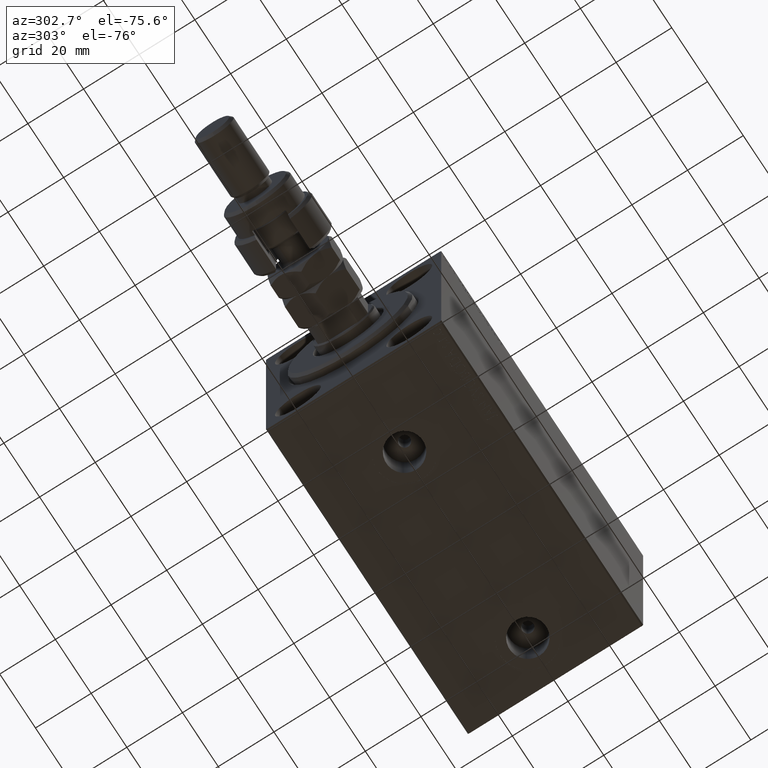
[diagram: clean part render]
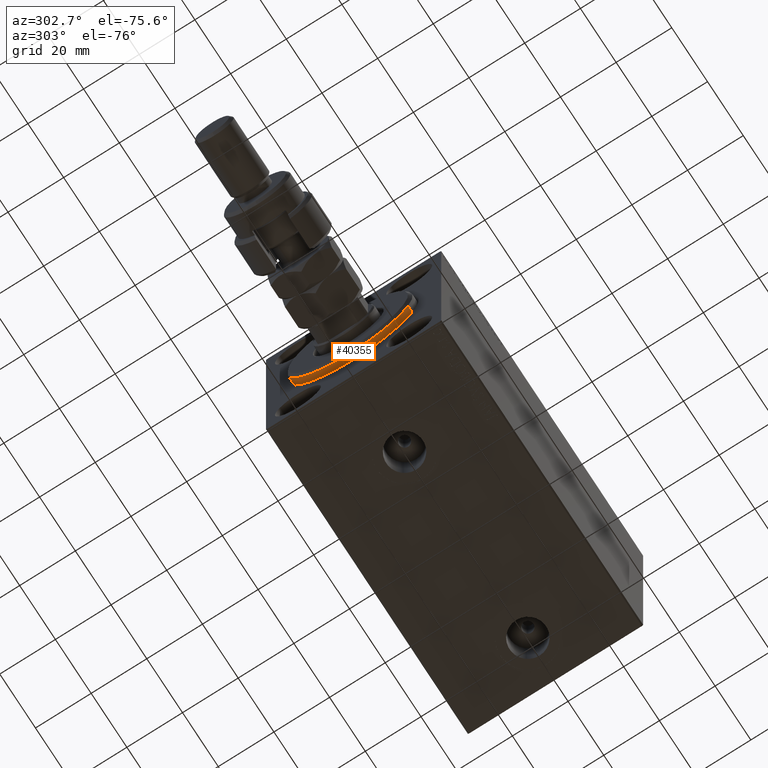
[diagram: same view with one face highlighted and labeled with its STEP entity id]
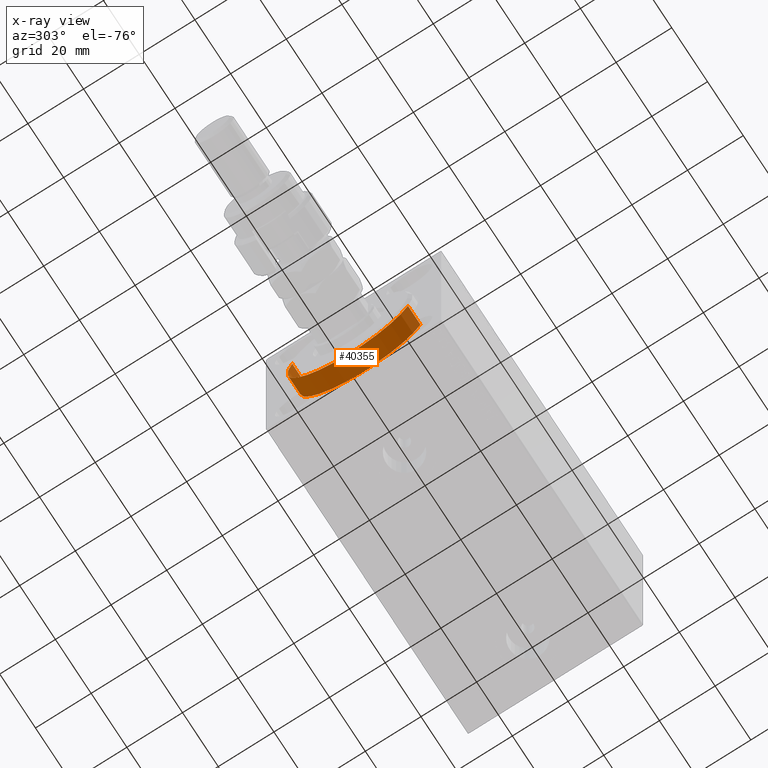
[diagram: x-ray of the same camera — body ghosted, the highlighted face saturated]
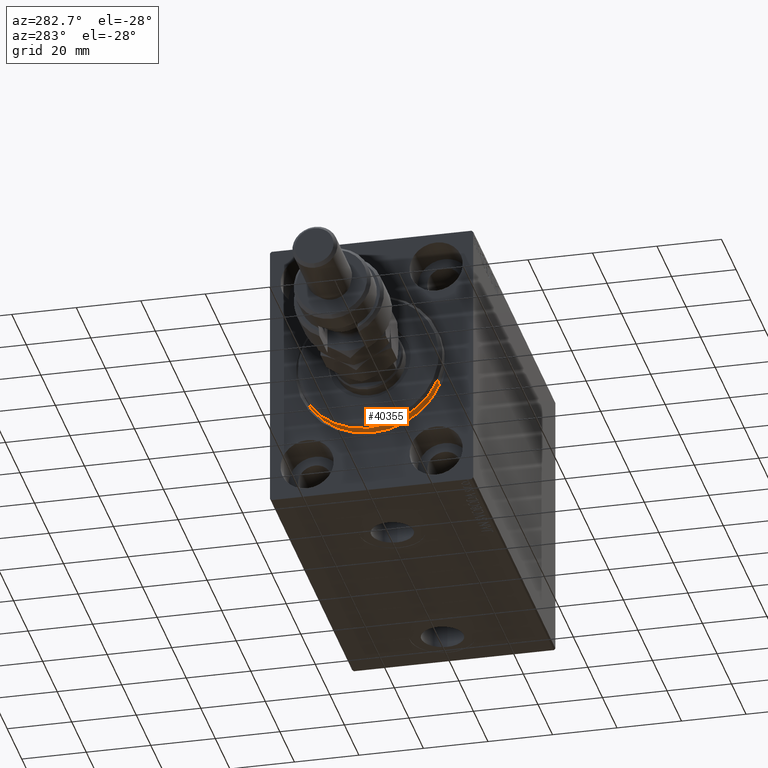
[diagram: same view with one face highlighted and labeled with its STEP entity id]
A machine part, auxiliary view. The second image highlights one B-rep face of the part: STEP entity #40355.
The next image is the same camera in x-ray: the body ghosted, the highlighted face saturated — about 0% of this face is hidden behind the body in this view.
A second angle (auxiliary view) of the same face is appended — the face is thin or edge-on in the first view.
In plain terms, the highlighted cylindrical surface (partial cylindrical patch) has radius 22.5 mm, axis along (1, 0, 0).
Its self-contained STEP definition (entity closure, byte-faithful):
#1938 = DIRECTION ( 'NONE',  ( -1.000000000000000000, -0.000000000000000000, -0.000000000000000000 ) ) ;
#2433 = CARTESIAN_POINT ( 'NONE',  ( -5.000000000000000000, 0.000000000000000000, 22.50000000000000355 ) ) ;
#2795 = EDGE_CURVE ( 'NONE', #13471, #30487, #25621, .T. ) ;
#2850 = CARTESIAN_POINT ( 'NONE',  ( -5.000000000000000000, 2.755455298081545172E-15, -22.50000000000000355 ) ) ;
#4375 = ORIENTED_EDGE ( 'NONE', *, *, #46067, .F. ) ;
#4682 = AXIS2_PLACEMENT_3D ( 'NONE', #32839, #22128, #36962 ) ;
#5425 = CARTESIAN_POINT ( 'NONE',  ( 3.000000000000000000, 2.755455298081545172E-15, -22.50000000000000355 ) ) ;
#6763 = FACE_OUTER_BOUND ( 'NONE', #36389, .T. ) ;
#7535 = VERTEX_POINT ( 'NONE', #22533 ) ;
#8065 = ORIENTED_EDGE ( 'NONE', *, *, #21527, .T. ) ;
#8387 = ORIENTED_EDGE ( 'NONE', *, *, #2795, .F. ) ;
#8440 = AXIS2_PLACEMENT_3D ( 'NONE', #43440, #1938, #16730 ) ;
#8500 = CARTESIAN_POINT ( 'NONE',  ( 1.999999999999999112, 0.000000000000000000, 22.50000000000000355 ) ) ;
#8656 = DIRECTION ( 'NONE',  ( -1.000000000000000000, -0.000000000000000000, -0.000000000000000000 ) ) ;
#12058 = CARTESIAN_POINT ( 'NONE',  ( 3.000000000000000000, 0.000000000000000000, 22.50000000000000355 ) ) ;
#13438 = LINE ( 'NONE', #5425, #42350 ) ;
#13471 = VERTEX_POINT ( 'NONE', #2433 ) ;
#16204 = DIRECTION ( 'NONE',  ( -1.000000000000000000, 0.000000000000000000, 0.000000000000000000 ) ) ;
#16730 = DIRECTION ( 'NONE',  ( 0.000000000000000000, 0.000000000000000000, 1.000000000000000000 ) ) ;
#21527 = EDGE_CURVE ( 'NONE', #7535, #30487, #13438, .T. ) ;
#21750 = DIRECTION ( 'NONE',  ( 0.000000000000000000, 0.000000000000000000, -1.000000000000000000 ) ) ;
#22128 = DIRECTION ( 'NONE',  ( -1.000000000000000000, 0.000000000000000000, 0.000000000000000000 ) ) ;
#22533 = CARTESIAN_POINT ( 'NONE',  ( 1.999999999999999112, 2.755455298081545172E-15, -22.50000000000000355 ) ) ;
#23908 = CIRCLE ( 'NONE', #39440, 22.50000000000000355 ) ;
#25567 = VECTOR ( 'NONE', #8656, 1000.000000000000000 ) ;
#25621 = CIRCLE ( 'NONE', #4682, 22.50000000000000355 ) ;
#27394 = CARTESIAN_POINT ( 'NONE',  ( 1.999999999999999112, 0.000000000000000000, 0.000000000000000000 ) ) ;
#27774 = DIRECTION ( 'NONE',  ( -1.000000000000000000, -0.000000000000000000, -0.000000000000000000 ) ) ;
#30487 = VERTEX_POINT ( 'NONE', #2850 ) ;
#32839 = CARTESIAN_POINT ( 'NONE',  ( -5.000000000000000000, 0.000000000000000000, 0.000000000000000000 ) ) ;
#35192 = CYLINDRICAL_SURFACE ( 'NONE', #8440, 22.50000000000000355 ) ;
#36389 = EDGE_LOOP ( 'NONE', ( #40693, #8065, #8387, #4375 ) ) ;
#36962 = DIRECTION ( 'NONE',  ( 0.000000000000000000, 0.000000000000000000, 1.000000000000000000 ) ) ;
#38657 = VERTEX_POINT ( 'NONE', #8500 ) ;
#39178 = EDGE_CURVE ( 'NONE', #38657, #7535, #23908, .T. ) ;
#39440 = AXIS2_PLACEMENT_3D ( 'NONE', #27394, #16204, #21750 ) ;
#40355 = ADVANCED_FACE ( 'NONE', ( #6763 ), #35192, .T. ) ;
#40693 = ORIENTED_EDGE ( 'NONE', *, *, #39178, .T. ) ;
#42168 = LINE ( 'NONE', #12058, #25567 ) ;
#42350 = VECTOR ( 'NONE', #27774, 1000.000000000000000 ) ;
#43440 = CARTESIAN_POINT ( 'NONE',  ( 3.000000000000000000, 0.000000000000000000, 0.000000000000000000 ) ) ;
#46067 = EDGE_CURVE ( 'NONE', #38657, #13471, #42168, .T. ) ;